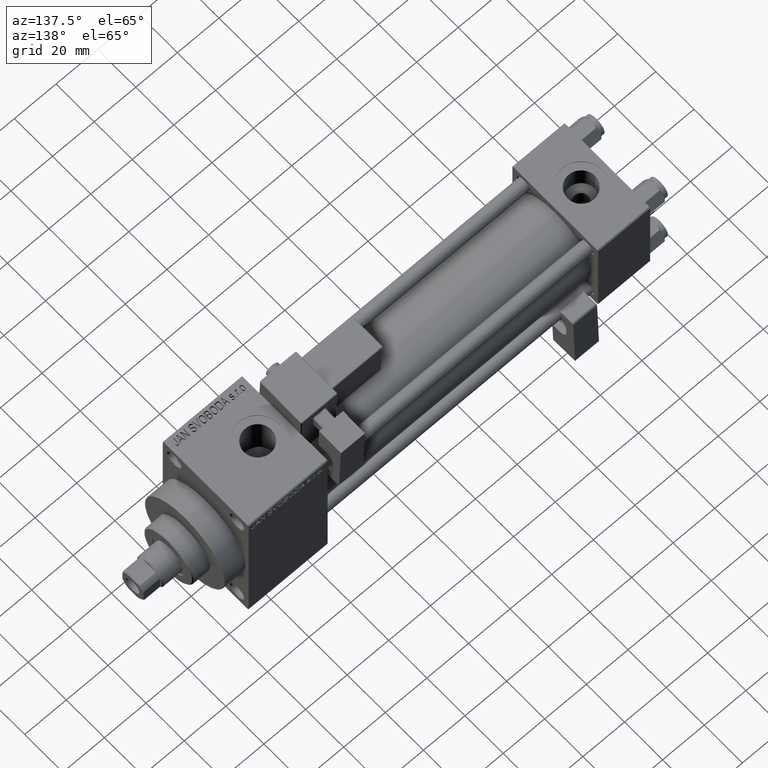
[diagram: clean part render]
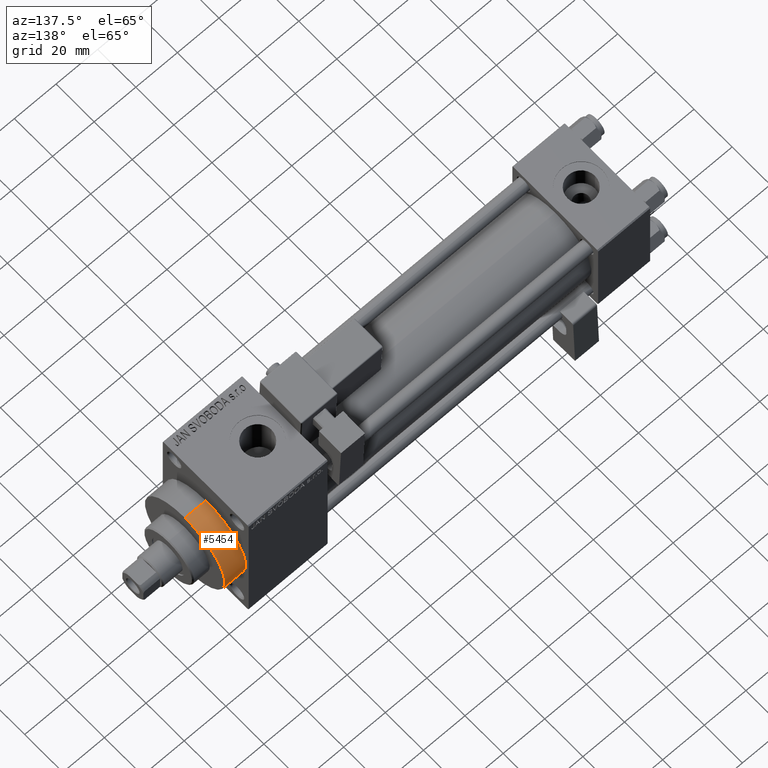
[diagram: same view with one face highlighted and labeled with its STEP entity id]
A machine part, auxiliary view. The second image highlights one B-rep face of the part: STEP entity #5454.
In plain terms, the highlighted cylindrical surface (partial cylindrical patch) has radius 21 mm, axis along (-1, -0, -0).
Its self-contained STEP definition (entity closure, byte-faithful):
#2656 = AXIS2_PLACEMENT_3D ( 'NONE', #24364, #48058, #9628 ) ;
#2899 = VERTEX_POINT ( 'NONE', #43213 ) ;
#2900 = VECTOR ( 'NONE', #10466, 1000.000000000000000 ) ;
#3832 = ORIENTED_EDGE ( 'NONE', *, *, #47547, .T. ) ;
#3937 = LINE ( 'NONE', #49148, #2900 ) ;
#4064 = ORIENTED_EDGE ( 'NONE', *, *, #36841, .F. ) ;
#4249 = DIRECTION ( 'NONE',  ( 0.000000000000000000, 0.000000000000000000, -1.000000000000000000 ) ) ;
#5355 = ORIENTED_EDGE ( 'NONE', *, *, #14607, .F. ) ;
#5454 = ADVANCED_FACE ( 'NONE', ( #48086 ), #13884, .T. ) ;
#5727 = LINE ( 'NONE', #16977, #9101 ) ;
#8693 = AXIS2_PLACEMENT_3D ( 'NONE', #44324, #10140, #14130 ) ;
#9101 = VECTOR ( 'NONE', #47443, 1000.000000000000000 ) ;
#9628 = DIRECTION ( 'NONE',  ( 0.000000000000000000, 0.000000000000000000, -1.000000000000000000 ) ) ;
#9879 = CIRCLE ( 'NONE', #2656, 21.00000000000000000 ) ;
#10140 = DIRECTION ( 'NONE',  ( -1.000000000000000000, -0.000000000000000000, -0.000000000000000000 ) ) ;
#10466 = DIRECTION ( 'NONE',  ( -1.000000000000000000, -0.000000000000000000, -0.000000000000000000 ) ) ;
#11667 = AXIS2_PLACEMENT_3D ( 'NONE', #26984, #24234, #4249 ) ;
#13884 = CYLINDRICAL_SURFACE ( 'NONE', #8693, 21.00000000000000000 ) ;
#14130 = DIRECTION ( 'NONE',  ( 0.000000000000000000, 0.000000000000000000, 1.000000000000000000 ) ) ;
#14607 = EDGE_CURVE ( 'NONE', #2899, #35937, #5727, .T. ) ;
#16098 = CARTESIAN_POINT ( 'NONE',  ( 203.0000000000000000, 2.571758278209441661E-15, -21.00000000000000000 ) ) ;
#16977 = CARTESIAN_POINT ( 'NONE',  ( 203.0000000000000000, 0.000000000000000000, 21.00000000000000000 ) ) ;
#22956 = ORIENTED_EDGE ( 'NONE', *, *, #42431, .T. ) ;
#24234 = DIRECTION ( 'NONE',  ( 1.000000000000000000, 0.000000000000000000, 0.000000000000000000 ) ) ;
#24364 = CARTESIAN_POINT ( 'NONE',  ( 203.0000000000000000, 0.000000000000000000, 0.000000000000000000 ) ) ;
#25468 = VERTEX_POINT ( 'NONE', #16098 ) ;
#25894 = EDGE_LOOP ( 'NONE', ( #4064, #3832, #22956, #5355 ) ) ;
#26250 = CARTESIAN_POINT ( 'NONE',  ( 193.0000000000000000, 0.000000000000000000, 21.00000000000000000 ) ) ;
#26984 = CARTESIAN_POINT ( 'NONE',  ( 193.0000000000000000, 0.000000000000000000, 0.000000000000000000 ) ) ;
#35335 = VERTEX_POINT ( 'NONE', #39543 ) ;
#35937 = VERTEX_POINT ( 'NONE', #26250 ) ;
#36841 = EDGE_CURVE ( 'NONE', #25468, #2899, #9879, .T. ) ;
#39543 = CARTESIAN_POINT ( 'NONE',  ( 193.0000000000000000, 2.571758278209441661E-15, -21.00000000000000000 ) ) ;
#42431 = EDGE_CURVE ( 'NONE', #35335, #35937, #48334, .T. ) ;
#43213 = CARTESIAN_POINT ( 'NONE',  ( 203.0000000000000000, 0.000000000000000000, 21.00000000000000000 ) ) ;
#44324 = CARTESIAN_POINT ( 'NONE',  ( 203.0000000000000000, 0.000000000000000000, 0.000000000000000000 ) ) ;
#47443 = DIRECTION ( 'NONE',  ( -1.000000000000000000, -0.000000000000000000, -0.000000000000000000 ) ) ;
#47547 = EDGE_CURVE ( 'NONE', #25468, #35335, #3937, .T. ) ;
#48058 = DIRECTION ( 'NONE',  ( 1.000000000000000000, 0.000000000000000000, 0.000000000000000000 ) ) ;
#48086 = FACE_OUTER_BOUND ( 'NONE', #25894, .T. ) ;
#48334 = CIRCLE ( 'NONE', #11667, 21.00000000000000000 ) ;
#49148 = CARTESIAN_POINT ( 'NONE',  ( 203.0000000000000000, 2.571758278209441661E-15, -21.00000000000000000 ) ) ;